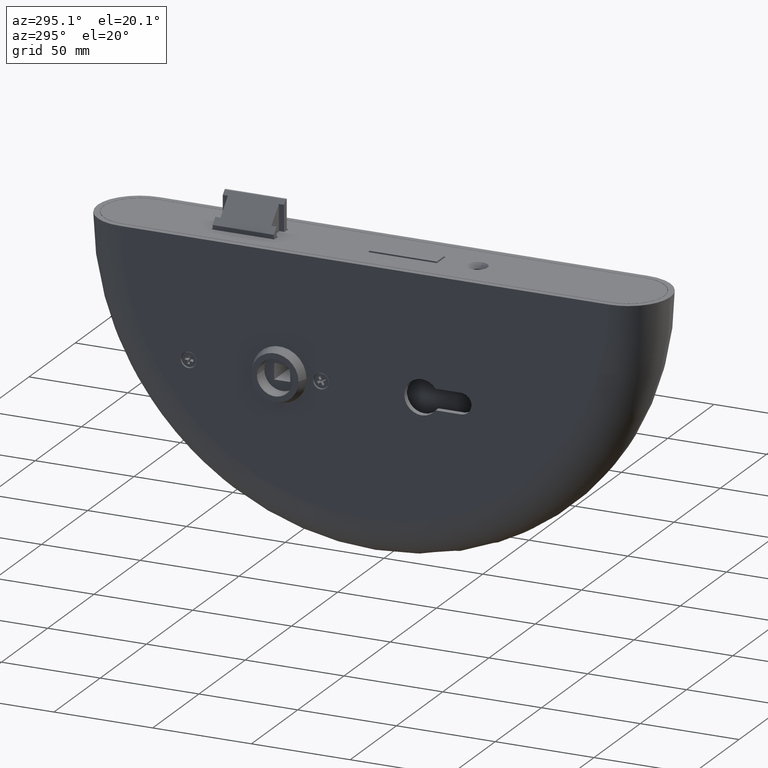
[diagram: clean part render]
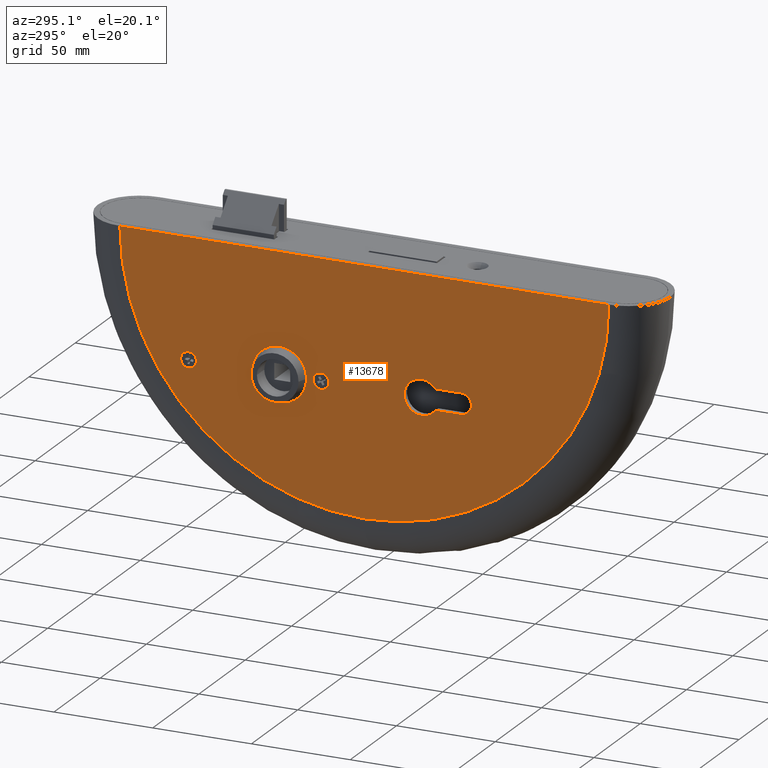
[diagram: same view with one face highlighted and labeled with its STEP entity id]
A machine part, auxiliary view. The second image highlights one B-rep face of the part: STEP entity #13678.
In plain terms, the highlighted planar face has unit normal (1, 0, 0).
Its self-contained STEP definition (entity closure, byte-faithful):
#32 = DIRECTION ( 'NONE',  ( 1.000000000000000000, 0.000000000000000000, 0.000000000000000000 ) ) ;
#112 = CIRCLE ( 'NONE', #468, 4.000000000000003553 ) ;
#122 = AXIS2_PLACEMENT_3D ( 'NONE', #12594, #832, #11078 ) ;
#305 = EDGE_CURVE ( 'NONE', #11579, #3919, #13045, .T. ) ;
#323 = FACE_BOUND ( 'NONE', #4427, .T. ) ;
#449 = DIRECTION ( 'NONE',  ( 0.000000000000000000, 1.000000000000000000, 0.000000000000000000 ) ) ;
#468 = AXIS2_PLACEMENT_3D ( 'NONE', #10850, #13170, #11984 ) ;
#707 = CARTESIAN_POINT ( 'NONE',  ( -21.19999999999999929, -36.06240044177611281, -65.25000000000000000 ) ) ;
#832 = DIRECTION ( 'NONE',  ( -1.000000000000000000, -0.000000000000000000, -0.000000000000000000 ) ) ;
#892 = DIRECTION ( 'NONE',  ( 1.000000000000000000, 0.000000000000000000, 0.000000000000000000 ) ) ;
#1130 = CIRCLE ( 'NONE', #13999, 8.799999999999995381 ) ;
#1151 = CIRCLE ( 'NONE', #9406, 4.000000000000003553 ) ;
#1339 = EDGE_CURVE ( 'NONE', #6329, #5088, #2787, .T. ) ;
#1384 = ORIENTED_EDGE ( 'NONE', *, *, #15810, .T. ) ;
#1409 = CARTESIAN_POINT ( 'NONE',  ( -21.20000000000000284, 21.99999999999998224, -59.99999999999995026 ) ) ;
#1516 = DIRECTION ( 'NONE',  ( 0.000000000000000000, 0.000000000000000000, -1.000000000000000000 ) ) ;
#1530 = CARTESIAN_POINT ( 'NONE',  ( -21.19999999999999929, 42.99999999999998579, -59.99999999999995026 ) ) ;
#2036 = CARTESIAN_POINT ( 'NONE',  ( -21.19999999999999929, 0.000000000000000000, -123.7999999999999972 ) ) ;
#2158 = VERTEX_POINT ( 'NONE', #15068 ) ;
#2199 = EDGE_CURVE ( 'NONE', #16347, #2158, #4431, .T. ) ;
#2227 = CARTESIAN_POINT ( 'NONE',  ( -21.19999999999999929, -29.00000000000001066, -59.99999999999995026 ) ) ;
#2720 = DIRECTION ( 'NONE',  ( 0.000000000000000000, 0.000000000000000000, -1.000000000000000000 ) ) ;
#2787 = CIRCLE ( 'NONE', #15707, 123.7999999999999972 ) ;
#2832 = VERTEX_POINT ( 'NONE', #4021 ) ;
#3232 = ORIENTED_EDGE ( 'NONE', *, *, #12550, .F. ) ;
#3399 = ORIENTED_EDGE ( 'NONE', *, *, #1339, .T. ) ;
#3686 = EDGE_CURVE ( 'NONE', #2832, #16630, #1151, .T. ) ;
#3739 = DIRECTION ( 'NONE',  ( 0.000000000000000000, -1.000000000000000000, -2.871266442996094569E-16 ) ) ;
#3919 = VERTEX_POINT ( 'NONE', #6750 ) ;
#4021 = CARTESIAN_POINT ( 'NONE',  ( -21.20000000000000284, 88.99999999999998579, -63.99999999999994316 ) ) ;
#4229 = ORIENTED_EDGE ( 'NONE', *, *, #3686, .F. ) ;
#4243 = ORIENTED_EDGE ( 'NONE', *, *, #10655, .T. ) ;
#4427 = EDGE_LOOP ( 'NONE', ( #10659, #15055 ) ) ;
#4431 = CIRCLE ( 'NONE', #12777, 8.799999999999995381 ) ;
#4525 = EDGE_CURVE ( 'NONE', #2158, #14006, #1130, .T. ) ;
#4617 = DIRECTION ( 'NONE',  ( 0.000000000000000000, 0.000000000000000000, -1.000000000000000000 ) ) ;
#4638 = VERTEX_POINT ( 'NONE', #12065 ) ;
#4994 = DIRECTION ( 'NONE',  ( 0.000000000000000000, 0.000000000000000000, 1.000000000000000000 ) ) ;
#5088 = VERTEX_POINT ( 'NONE', #2036 ) ;
#5304 = DIRECTION ( 'NONE',  ( 0.000000000000000000, 0.000000000000000000, -1.000000000000000000 ) ) ;
#5316 = ORIENTED_EDGE ( 'NONE', *, *, #10483, .T. ) ;
#5617 = LINE ( 'NONE', #6859, #10472 ) ;
#5654 = EDGE_LOOP ( 'NONE', ( #3232, #4229 ) ) ;
#5935 = EDGE_LOOP ( 'NONE', ( #4243, #6758, #7111, #12164, #1384, #5316 ) ) ;
#6091 = DIRECTION ( 'NONE',  ( -1.000000000000000000, -0.000000000000000000, -0.000000000000000000 ) ) ;
#6157 = LINE ( 'NONE', #11577, #8380 ) ;
#6174 = FACE_OUTER_BOUND ( 'NONE', #12383, .T. ) ;
#6246 = VERTEX_POINT ( 'NONE', #13834 ) ;
#6329 = VERTEX_POINT ( 'NONE', #14056 ) ;
#6750 = CARTESIAN_POINT ( 'NONE',  ( -21.19999999999999929, 42.99999999999998579, -49.99999999999995026 ) ) ;
#6758 = ORIENTED_EDGE ( 'NONE', *, *, #2199, .T. ) ;
#6859 = CARTESIAN_POINT ( 'NONE',  ( -21.19999999999999929, -48.94999999999999574, -65.25000000000000000 ) ) ;
#7111 = ORIENTED_EDGE ( 'NONE', *, *, #4525, .T. ) ;
#7133 = CARTESIAN_POINT ( 'NONE',  ( -21.19999999999999929, 0.000000000000000000, 0.000000000000000000 ) ) ;
#7170 = FACE_BOUND ( 'NONE', #5935, .T. ) ;
#7200 = DIRECTION ( 'NONE',  ( 1.000000000000000000, 0.000000000000000000, 0.000000000000000000 ) ) ;
#7256 = AXIS2_PLACEMENT_3D ( 'NONE', #12864, #15539, #8988 ) ;
#7481 = CARTESIAN_POINT ( 'NONE',  ( -21.20000000000000284, 88.99999999999998579, -59.99999999999995026 ) ) ;
#7560 = VERTEX_POINT ( 'NONE', #13277 ) ;
#7605 = CIRCLE ( 'NONE', #7256, 4.000000000000003553 ) ;
#7614 = EDGE_LOOP ( 'NONE', ( #12086, #15105 ) ) ;
#7763 = CARTESIAN_POINT ( 'NONE',  ( -21.19999999999999929, -29.00000000000001066, -51.19999999999995310 ) ) ;
#7784 = FACE_BOUND ( 'NONE', #5654, .T. ) ;
#7896 = DIRECTION ( 'NONE',  ( -1.000000000000000000, -0.000000000000000000, -0.000000000000000000 ) ) ;
#7947 = DIRECTION ( 'NONE',  ( 1.000000000000000000, 0.000000000000000000, 0.000000000000000000 ) ) ;
#8061 = VERTEX_POINT ( 'NONE', #16047 ) ;
#8188 = AXIS2_PLACEMENT_3D ( 'NONE', #10437, #32, #2720 ) ;
#8357 = PLANE ( 'NONE',  #16632 ) ;
#8380 = VECTOR ( 'NONE', #3739, 1000.000000000000000 ) ;
#8507 = DIRECTION ( 'NONE',  ( 0.000000000000000000, 0.000000000000000000, -1.000000000000000000 ) ) ;
#8511 = CARTESIAN_POINT ( 'NONE',  ( -21.19999999999999929, -29.00000000000001066, -59.99999999999995026 ) ) ;
#8773 = VECTOR ( 'NONE', #14437, 1000.000000000000000 ) ;
#8932 = EDGE_CURVE ( 'NONE', #14006, #8061, #13947, .T. ) ;
#8988 = DIRECTION ( 'NONE',  ( 0.000000000000000000, 0.000000000000000000, 1.000000000000000000 ) ) ;
#9359 = CARTESIAN_POINT ( 'NONE',  ( -21.19999999999999929, -123.7999999999999972, -2.166849075647719437E-14 ) ) ;
#9406 = AXIS2_PLACEMENT_3D ( 'NONE', #7481, #6091, #4994 ) ;
#9618 = EDGE_CURVE ( 'NONE', #15392, #4638, #7605, .T. ) ;
#9704 = CIRCLE ( 'NONE', #15192, 5.250000000000004441 ) ;
#9772 = EDGE_CURVE ( 'NONE', #3919, #11579, #14539, .T. ) ;
#9918 = CARTESIAN_POINT ( 'NONE',  ( -21.20000000000000284, 21.99999999999998224, -63.99999999999994316 ) ) ;
#10149 = ORIENTED_EDGE ( 'NONE', *, *, #14295, .F. ) ;
#10437 = CARTESIAN_POINT ( 'NONE',  ( -21.19999999999999929, 42.99999999999998579, -59.99999999999995026 ) ) ;
#10472 = VECTOR ( 'NONE', #449, 1000.000000000000000 ) ;
#10483 = EDGE_CURVE ( 'NONE', #7560, #6246, #9704, .T. ) ;
#10615 = VERTEX_POINT ( 'NONE', #9359 ) ;
#10655 = EDGE_CURVE ( 'NONE', #6246, #16347, #5617, .T. ) ;
#10659 = ORIENTED_EDGE ( 'NONE', *, *, #15015, .F. ) ;
#10850 = CARTESIAN_POINT ( 'NONE',  ( -21.20000000000000284, 88.99999999999998579, -59.99999999999995026 ) ) ;
#11026 = ORIENTED_EDGE ( 'NONE', *, *, #14197, .T. ) ;
#11041 = DIRECTION ( 'NONE',  ( 1.000000000000000000, 0.000000000000000000, 0.000000000000000000 ) ) ;
#11052 = CIRCLE ( 'NONE', #14817, 4.000000000000003553 ) ;
#11078 = DIRECTION ( 'NONE',  ( 0.000000000000000000, 0.000000000000000000, -1.000000000000000000 ) ) ;
#11293 = CARTESIAN_POINT ( 'NONE',  ( -21.19999999999999929, 42.99999999999998579, -69.99999999999995737 ) ) ;
#11577 = CARTESIAN_POINT ( 'NONE',  ( -21.19999999999999929, 145.0000000000000000, 5.551115123125782702E-14 ) ) ;
#11579 = VERTEX_POINT ( 'NONE', #11293 ) ;
#11962 = AXIS2_PLACEMENT_3D ( 'NONE', #1530, #15656, #5304 ) ;
#11984 = DIRECTION ( 'NONE',  ( 0.000000000000000000, 0.000000000000000000, 1.000000000000000000 ) ) ;
#12065 = CARTESIAN_POINT ( 'NONE',  ( -21.20000000000000284, 21.99999999999998224, -55.99999999999994316 ) ) ;
#12068 = DIRECTION ( 'NONE',  ( 0.000000000000000000, 0.000000000000000000, -1.000000000000000000 ) ) ;
#12086 = ORIENTED_EDGE ( 'NONE', *, *, #305, .T. ) ;
#12164 = ORIENTED_EDGE ( 'NONE', *, *, #8932, .T. ) ;
#12260 = LINE ( 'NONE', #14327, #8773 ) ;
#12383 = EDGE_LOOP ( 'NONE', ( #10149, #3399, #11026 ) ) ;
#12437 = DIRECTION ( 'NONE',  ( -1.000000000000000000, -0.000000000000000000, -0.000000000000000000 ) ) ;
#12550 = EDGE_CURVE ( 'NONE', #16630, #2832, #112, .T. ) ;
#12594 = CARTESIAN_POINT ( 'NONE',  ( -21.19999999999999929, 0.000000000000000000, 0.000000000000000000 ) ) ;
#12777 = AXIS2_PLACEMENT_3D ( 'NONE', #8511, #11041, #4617 ) ;
#12864 = CARTESIAN_POINT ( 'NONE',  ( -21.20000000000000284, 21.99999999999998224, -59.99999999999995026 ) ) ;
#13045 = CIRCLE ( 'NONE', #8188, 10.00000000000000178 ) ;
#13170 = DIRECTION ( 'NONE',  ( -1.000000000000000000, -0.000000000000000000, -0.000000000000000000 ) ) ;
#13277 = CARTESIAN_POINT ( 'NONE',  ( -21.19999999999999929, -48.94999999999999574, -54.74999999999999289 ) ) ;
#13514 = FACE_BOUND ( 'NONE', #7614, .T. ) ;
#13678 = ADVANCED_FACE ( 'NONE', ( #323, #7170, #13514, #6174, #7784 ), #8357, .F. ) ;
#13691 = CARTESIAN_POINT ( 'NONE',  ( -21.19999999999999929, -48.94999999999999574, -60.00000000000000000 ) ) ;
#13834 = CARTESIAN_POINT ( 'NONE',  ( -21.19999999999999929, -48.94999999999999574, -65.25000000000000000 ) ) ;
#13898 = CARTESIAN_POINT ( 'NONE',  ( -21.20000000000000284, 88.99999999999998579, -55.99999999999994316 ) ) ;
#13947 = CIRCLE ( 'NONE', #14244, 8.799999999999995381 ) ;
#13999 = AXIS2_PLACEMENT_3D ( 'NONE', #15642, #7947, #1516 ) ;
#14006 = VERTEX_POINT ( 'NONE', #7763 ) ;
#14056 = CARTESIAN_POINT ( 'NONE',  ( -21.19999999999999929, 123.7999999999999972, 4.942406637210611103E-14 ) ) ;
#14095 = CIRCLE ( 'NONE', #122, 123.7999999999999972 ) ;
#14197 = EDGE_CURVE ( 'NONE', #5088, #10615, #14095, .T. ) ;
#14244 = AXIS2_PLACEMENT_3D ( 'NONE', #2227, #892, #15179 ) ;
#14295 = EDGE_CURVE ( 'NONE', #6329, #10615, #6157, .T. ) ;
#14327 = CARTESIAN_POINT ( 'NONE',  ( -21.19999999999999929, -48.94999999999999574, -54.74999999999999289 ) ) ;
#14331 = DIRECTION ( 'NONE',  ( 0.000000000000000000, 0.000000000000000000, 1.000000000000000000 ) ) ;
#14437 = DIRECTION ( 'NONE',  ( -0.000000000000000000, -1.000000000000000000, -0.000000000000000000 ) ) ;
#14539 = CIRCLE ( 'NONE', #11962, 10.00000000000000178 ) ;
#14748 = DIRECTION ( 'NONE',  ( 1.000000000000000000, 0.000000000000000000, 0.000000000000000000 ) ) ;
#14817 = AXIS2_PLACEMENT_3D ( 'NONE', #1409, #7896, #14331 ) ;
#15015 = EDGE_CURVE ( 'NONE', #4638, #15392, #11052, .T. ) ;
#15055 = ORIENTED_EDGE ( 'NONE', *, *, #9618, .F. ) ;
#15068 = CARTESIAN_POINT ( 'NONE',  ( -21.19999999999999929, -29.00000000000001066, -68.79999999999994031 ) ) ;
#15105 = ORIENTED_EDGE ( 'NONE', *, *, #9772, .T. ) ;
#15179 = DIRECTION ( 'NONE',  ( 0.000000000000000000, 0.000000000000000000, -1.000000000000000000 ) ) ;
#15192 = AXIS2_PLACEMENT_3D ( 'NONE', #13691, #7200, #8507 ) ;
#15392 = VERTEX_POINT ( 'NONE', #9918 ) ;
#15539 = DIRECTION ( 'NONE',  ( -1.000000000000000000, -0.000000000000000000, -0.000000000000000000 ) ) ;
#15642 = CARTESIAN_POINT ( 'NONE',  ( -21.19999999999999929, -29.00000000000001066, -59.99999999999995026 ) ) ;
#15656 = DIRECTION ( 'NONE',  ( 1.000000000000000000, 0.000000000000000000, 0.000000000000000000 ) ) ;
#15707 = AXIS2_PLACEMENT_3D ( 'NONE', #7133, #12437, #16400 ) ;
#15810 = EDGE_CURVE ( 'NONE', #8061, #7560, #12260, .T. ) ;
#16047 = CARTESIAN_POINT ( 'NONE',  ( -21.19999999999999929, -36.06240044177619097, -54.74999999999999289 ) ) ;
#16050 = CARTESIAN_POINT ( 'NONE',  ( -21.19999999999999929, 0.000000000000000000, 0.000000000000000000 ) ) ;
#16347 = VERTEX_POINT ( 'NONE', #707 ) ;
#16400 = DIRECTION ( 'NONE',  ( 0.000000000000000000, 1.776356839400250465E-15, -1.000000000000000000 ) ) ;
#16630 = VERTEX_POINT ( 'NONE', #13898 ) ;
#16632 = AXIS2_PLACEMENT_3D ( 'NONE', #16050, #14748, #12068 ) ;